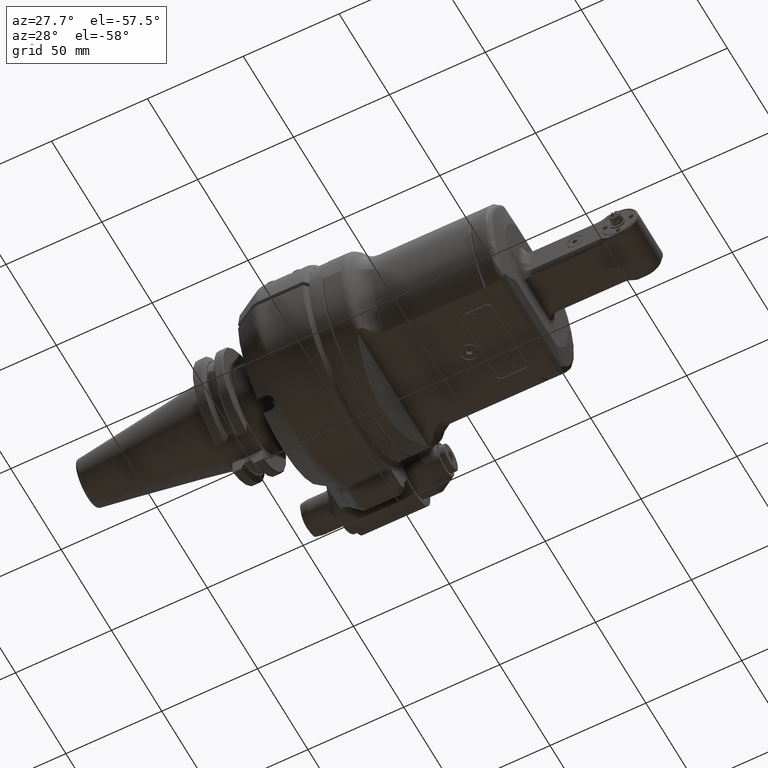
[diagram: clean part render]
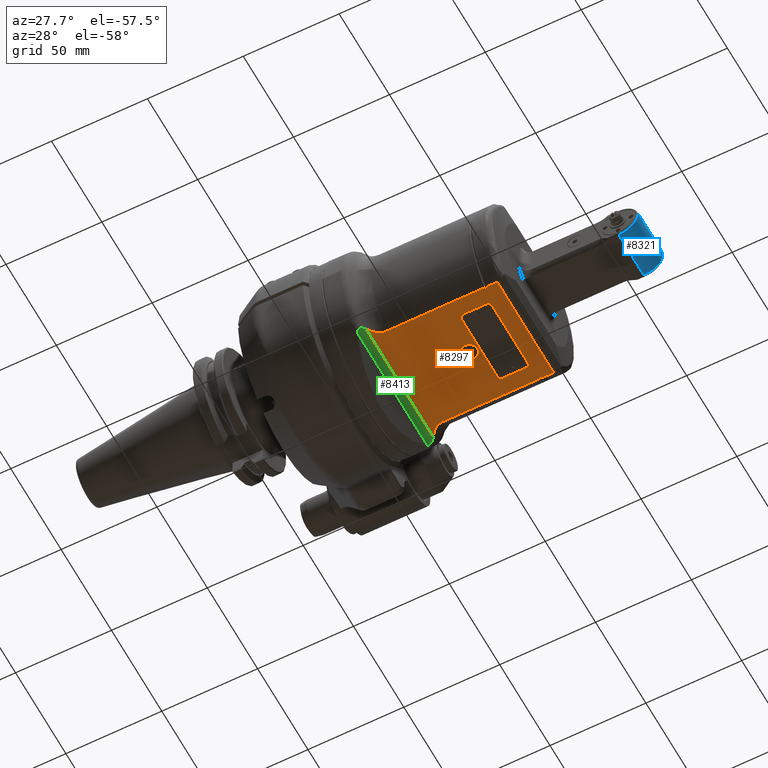
[diagram: same view with three faces highlighted in distinct colors, each labeled with its STEP entity id]
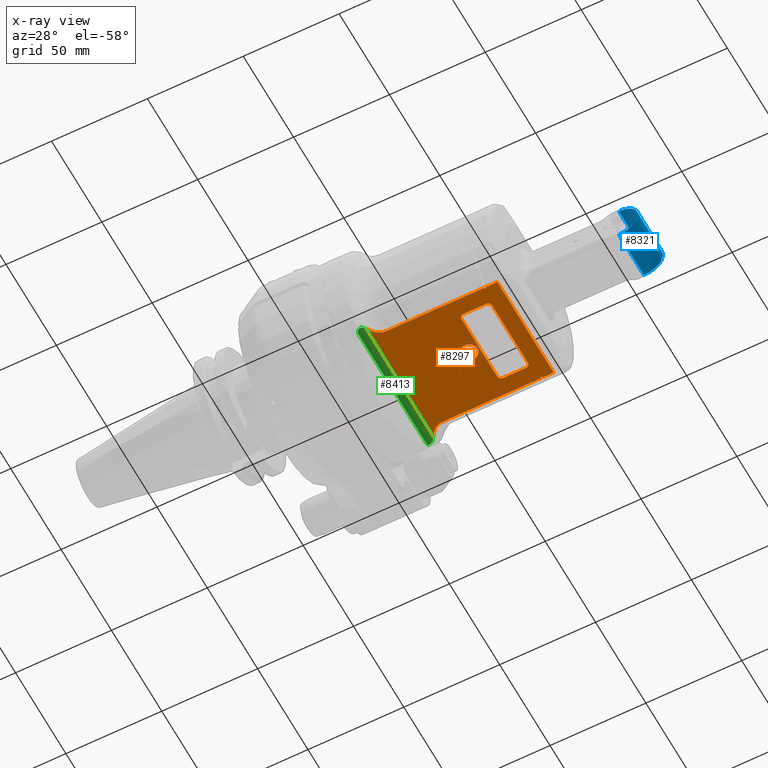
[diagram: x-ray of the same camera — body ghosted, the three highlighted faces saturated]
A machine part, auxiliary view with three faces highlighted in distinct colors.
The next image is the same camera in x-ray (body ghosted, the three faces saturated) — at least one of them is partly hidden behind the body in this view.
Their STEP definitions:

[orange] entity #8297 — the highlighted planar face has unit normal (0, 0, 1).
#187=FACE_BOUND('',#1111,.T.);
#188=FACE_BOUND('',#1112,.T.);
#252=(
BOUNDED_CURVE()
B_SPLINE_CURVE(2,(#12632,#12633,#12634),.UNSPECIFIED.,.F.,.F.)
B_SPLINE_CURVE_WITH_KNOTS((3,3),(0.23160618142738,0.358514003521057),
 .UNSPECIFIED.)
CURVE()
GEOMETRIC_REPRESENTATION_ITEM()
RATIONAL_B_SPLINE_CURVE((1.02900848033019,1.0367195540213,1.04417147576477))
REPRESENTATION_ITEM('')
);
#253=(
BOUNDED_CURVE()
B_SPLINE_CURVE(2,(#12721,#12722,#12723),.UNSPECIFIED.,.F.,.F.)
B_SPLINE_CURVE_WITH_KNOTS((3,3),(7.65699018714519,7.78389800923655),
 .UNSPECIFIED.)
CURVE()
GEOMETRIC_REPRESENTATION_ITEM()
RATIONAL_B_SPLINE_CURVE((1.04417147576474,1.0367195540214,1.02900848033044))
REPRESENTATION_ITEM('')
);
#362=PLANE('',#9048);
#612=FACE_OUTER_BOUND('',#1110,.T.);
#1110=EDGE_LOOP('',(#5534,#5535,#5536,#5537,#5538,#5539,#5540,#5541,#5542,
#5543,#5544,#5545,#5546,#5547));
#1111=EDGE_LOOP('',(#5548));
#1112=EDGE_LOOP('',(#5549,#5550,#5551,#5552,#5553,#5554,#5555,#5556));
#1668=B_SPLINE_CURVE_WITH_KNOTS('',3,(#12615,#12616,#12617,#12618,#12619,
#12620,#12621,#12622,#12623,#12624,#12625,#12626),.UNSPECIFIED.,.F.,.F.,
(4,2,2,2,2,4),(3.0712756261057,3.21936466197179,3.36745369783788,3.55263373942635,
3.73781378101483,3.80386728738877),.UNSPECIFIED.);
#1677=B_SPLINE_CURVE_WITH_KNOTS('',3,(#12726,#12727,#12728,#12729,#12730,
#12731,#12732,#12733,#12734,#12735,#12736,#12737),.UNSPECIFIED.,.F.,.F.,
(4,2,2,2,2,4),(2.33868396482474,2.40473747119658,2.58991751278505,2.77509755437353,
2.92318659023961,3.0712756261057),.UNSPECIFIED.);
#1819=LINE('',#12593,#2397);
#1824=LINE('',#12611,#2402);
#1827=LINE('',#12739,#2405);
#1828=LINE('',#12745,#2406);
#1829=LINE('',#12747,#2407);
#1830=LINE('',#12749,#2408);
#1831=LINE('',#12757,#2409);
#1832=LINE('',#12761,#2410);
#1833=LINE('',#12765,#2411);
#1834=LINE('',#12769,#2412);
#2397=VECTOR('',#9978,51.26935071414);
#2402=VECTOR('',#9999,51.26935071414);
#2405=VECTOR('',#10048,66.8416030065);
#2406=VECTOR('',#10053,5.79108067422501);
#2407=VECTOR('',#10054,55.93746508379);
#2408=VECTOR('',#10055,5.79108067422501);
#2409=VECTOR('',#10062,35.5);
#2410=VECTOR('',#10065,12.);
#2411=VECTOR('',#10068,35.5);
#2412=VECTOR('',#10071,12.);
#2979=CIRCLE('',#9049,125.457615759713);
#2980=CIRCLE('',#9050,125.457615683286);
#2981=CIRCLE('',#9051,125.457615844418);
#2982=CIRCLE('',#9052,125.457615724848);
#2983=CIRCLE('',#9053,4.25);
#2984=CIRCLE('',#9054,2.);
#2985=CIRCLE('',#9055,2.);
#2986=CIRCLE('',#9056,2.);
#2987=CIRCLE('',#9057,2.);
#3394=VERTEX_POINT('',#12590);
#3395=VERTEX_POINT('',#12592);
#3399=VERTEX_POINT('',#12608);
#3400=VERTEX_POINT('',#12610);
#3401=VERTEX_POINT('',#12614);
#3403=VERTEX_POINT('',#12631);
#3415=VERTEX_POINT('',#12713);
#3416=VERTEX_POINT('',#12720);
#3417=VERTEX_POINT('',#12740);
#3418=VERTEX_POINT('',#12742);
#3419=VERTEX_POINT('',#12744);
#3420=VERTEX_POINT('',#12746);
#3421=VERTEX_POINT('',#12748);
#3422=VERTEX_POINT('',#12750);
#3423=VERTEX_POINT('',#12753);
#3424=VERTEX_POINT('',#12755);
#3425=VERTEX_POINT('',#12756);
#3426=VERTEX_POINT('',#12758);
#3427=VERTEX_POINT('',#12760);
#3428=VERTEX_POINT('',#12762);
#3429=VERTEX_POINT('',#12764);
#3430=VERTEX_POINT('',#12766);
#3431=VERTEX_POINT('',#12768);
#4209=EDGE_CURVE('',#3394,#3395,#1819,.T.);
#4218=EDGE_CURVE('',#3399,#3400,#1824,.T.);
#4220=EDGE_CURVE('',#3400,#3401,#1668,.T.);
#4223=EDGE_CURVE('',#3403,#3401,#252,.T.);
#4243=EDGE_CURVE('',#3416,#3415,#253,.T.);
#4245=EDGE_CURVE('',#3416,#3394,#1677,.T.);
#4246=EDGE_CURVE('',#3403,#3415,#1827,.T.);
#4247=EDGE_CURVE('',#3399,#3417,#2979,.T.);
#4248=EDGE_CURVE('',#3417,#3418,#2980,.T.);
#4249=EDGE_CURVE('',#3419,#3418,#1828,.T.);
#4250=EDGE_CURVE('',#3420,#3419,#1829,.T.);
#4251=EDGE_CURVE('',#3421,#3420,#1830,.T.);
#4252=EDGE_CURVE('',#3421,#3422,#2981,.T.);
#4253=EDGE_CURVE('',#3422,#3395,#2982,.T.);
#4254=EDGE_CURVE('',#3423,#3423,#2983,.T.);
#4255=EDGE_CURVE('',#3424,#3425,#1831,.T.);
#4256=EDGE_CURVE('',#3425,#3426,#2984,.T.);
#4257=EDGE_CURVE('',#3426,#3427,#1832,.T.);
#4258=EDGE_CURVE('',#3427,#3428,#2985,.T.);
#4259=EDGE_CURVE('',#3428,#3429,#1833,.T.);
#4260=EDGE_CURVE('',#3429,#3430,#2986,.T.);
#4261=EDGE_CURVE('',#3430,#3431,#1834,.T.);
#4262=EDGE_CURVE('',#3431,#3424,#2987,.T.);
#5534=ORIENTED_EDGE('',*,*,#4209,.F.);
#5535=ORIENTED_EDGE('',*,*,#4245,.F.);
#5536=ORIENTED_EDGE('',*,*,#4243,.T.);
#5537=ORIENTED_EDGE('',*,*,#4246,.F.);
#5538=ORIENTED_EDGE('',*,*,#4223,.T.);
#5539=ORIENTED_EDGE('',*,*,#4220,.F.);
#5540=ORIENTED_EDGE('',*,*,#4218,.F.);
#5541=ORIENTED_EDGE('',*,*,#4247,.T.);
#5542=ORIENTED_EDGE('',*,*,#4248,.T.);
#5543=ORIENTED_EDGE('',*,*,#4249,.F.);
#5544=ORIENTED_EDGE('',*,*,#4250,.F.);
#5545=ORIENTED_EDGE('',*,*,#4251,.F.);
#5546=ORIENTED_EDGE('',*,*,#4252,.T.);
#5547=ORIENTED_EDGE('',*,*,#4253,.T.);
#5548=ORIENTED_EDGE('',*,*,#4254,.T.);
#5549=ORIENTED_EDGE('',*,*,#4255,.T.);
#5550=ORIENTED_EDGE('',*,*,#4256,.T.);
#5551=ORIENTED_EDGE('',*,*,#4257,.T.);
#5552=ORIENTED_EDGE('',*,*,#4258,.T.);
#5553=ORIENTED_EDGE('',*,*,#4259,.T.);
#5554=ORIENTED_EDGE('',*,*,#4260,.T.);
#5555=ORIENTED_EDGE('',*,*,#4261,.T.);
#5556=ORIENTED_EDGE('',*,*,#4262,.T.);
#8297=ADVANCED_FACE('',(#612,#187,#188),#362,.F.);
#9048=AXIS2_PLACEMENT_3D('',#12738,#10046,#10047);
#9049=AXIS2_PLACEMENT_3D('',#12741,#10049,#10050);
#9050=AXIS2_PLACEMENT_3D('',#12743,#10051,#10052);
#9051=AXIS2_PLACEMENT_3D('',#12751,#10056,#10057);
#9052=AXIS2_PLACEMENT_3D('',#12752,#10058,#10059);
#9053=AXIS2_PLACEMENT_3D('',#12754,#10060,#10061);
#9054=AXIS2_PLACEMENT_3D('',#12759,#10063,#10064);
#9055=AXIS2_PLACEMENT_3D('',#12763,#10066,#10067);
#9056=AXIS2_PLACEMENT_3D('',#12767,#10069,#10070);
#9057=AXIS2_PLACEMENT_3D('',#12770,#10072,#10073);
#9978=DIRECTION('',(1.,3.473462649786E-9,-3.035885710973E-9));
#9999=DIRECTION('',(-1.,3.473462719081E-9,3.035885849564E-9));
#10046=DIRECTION('center_axis',(0.,0.,1.));
#10047=DIRECTION('ref_axis',(1.,0.,0.));
#10048=DIRECTION('',(4.41420997931E-13,-1.,1.593473993735E-13));
#10049=DIRECTION('center_axis',(-0.000101432513108256,-6.7248743118549E-5,
-0.999999992594526));
#10050=DIRECTION('ref_axis',(0.839311775710025,0.543650373259527,-0.000121693307890459));
#10051=DIRECTION('center_axis',(0.000101431716550913,-6.72482230361314E-5,
-0.999999992594642));
#10052=DIRECTION('ref_axis',(-0.835326366002053,0.549754351916615,-0.000121698591357801));
#10053=DIRECTION('',(-0.999999999999999,-3.075111336812E-8,-2.687717509043E-8));
#10054=DIRECTION('',(0.,1.,0.));
#10055=DIRECTION('',(0.999999999999999,-3.075112502425E-8,2.687718367915E-8));
#10056=DIRECTION('center_axis',(0.000101433409963309,6.72493286931444E-5,
-0.999999992594396));
#10057=DIRECTION('ref_axis',(-0.839311775708652,-0.543650373261407,-0.000121694378979329));
#10058=DIRECTION('center_axis',(-0.000101432149410331,6.72485056586998E-5,
-0.999999992594579));
#10059=DIRECTION('ref_axis',(0.835326366002591,-0.549754351915683,-0.000121699108309696));
#10060=DIRECTION('center_axis',(0.,0.,1.));
#10061=DIRECTION('ref_axis',(-1.,0.,0.));
#10062=DIRECTION('',(0.,-1.,0.));
#10063=DIRECTION('center_axis',(0.,0.,1.));
#10064=DIRECTION('ref_axis',(-1.,0.,0.));
#10065=DIRECTION('',(1.,0.,0.));
#10066=DIRECTION('center_axis',(0.,0.,1.));
#10067=DIRECTION('ref_axis',(0.,-1.,0.));
#10068=DIRECTION('',(0.,1.,0.));
#10069=DIRECTION('center_axis',(0.,0.,1.));
#10070=DIRECTION('ref_axis',(1.,0.,0.));
#10071=DIRECTION('',(-1.,0.,0.));
#10072=DIRECTION('center_axis',(0.,0.,1.));
#10073=DIRECTION('ref_axis',(0.,1.,0.));
#12590=CARTESIAN_POINT('',(17.23064887381,-27.96873254189,-32.));
#12592=CARTESIAN_POINT('',(68.4999999587753,-27.9687323282238,-32.0000002221198));
#12593=CARTESIAN_POINT('',(17.23064887381,-27.96873254189,-32.));
#12608=CARTESIAN_POINT('',(68.4999999587749,27.9687323282248,-32.0000002221204));
#12610=CARTESIAN_POINT('',(17.23064887381,27.96873254189,-32.));
#12611=CARTESIAN_POINT('',(68.49999958795,27.96873236381,-32.00000015565));
#12614=CARTESIAN_POINT('',(10.8689323207828,31.8285952717483,-31.9999999948987));
#12615=CARTESIAN_POINT('Ctrl Pts',(17.23064887381,27.968732541894,-32.));
#12616=CARTESIAN_POINT('Ctrl Pts',(16.7370187542564,27.968732541894,-32.));
#12617=CARTESIAN_POINT('Ctrl Pts',(16.2014291398538,28.0351278054541,-32.));
#12618=CARTESIAN_POINT('Ctrl Pts',(15.1655978291162,28.3086723916246,-32.));
#12619=CARTESIAN_POINT('Ctrl Pts',(14.6650966137489,28.5148380476213,-32.));
#12620=CARTESIAN_POINT('Ctrl Pts',(13.6833023503027,29.0346187724486,-32.));
#12621=CARTESIAN_POINT('Ctrl Pts',(13.1290095618824,29.419596467791,-32.));
#12622=CARTESIAN_POINT('Ctrl Pts',(12.1164800137392,30.3041616581605,-32.));
#12623=CARTESIAN_POINT('Ctrl Pts',(11.6572714347099,30.8026361299901,-32.));
#12624=CARTESIAN_POINT('Ctrl Pts',(11.137398225598,31.4591772499858,-32.));
#12625=CARTESIAN_POINT('Ctrl Pts',(11.0017950550171,31.6403251966167,-32.));
#12626=CARTESIAN_POINT('Ctrl Pts',(10.8689323183678,31.8285952700441,-32.));
#12631=CARTESIAN_POINT('',(9.73152223544517,33.4208052854652,-32.0000001608933));
#12632=CARTESIAN_POINT('Ctrl Pts',(9.73152233070806,33.4208053543217,-32.));
#12633=CARTESIAN_POINT('Ctrl Pts',(10.3141048133347,32.6148007729745,-32.));
#12634=CARTESIAN_POINT('Ctrl Pts',(10.868932318368,31.8285952700442,-32.));
#12713=CARTESIAN_POINT('',(9.73152223547876,-33.4208052854155,-32.0000001608898));
#12720=CARTESIAN_POINT('',(10.8689323207931,-31.8285952717287,-31.9999999949037));
#12721=CARTESIAN_POINT('Ctrl Pts',(10.868932318366,-31.8285952700471,-32.));
#12722=CARTESIAN_POINT('Ctrl Pts',(10.3141048133429,-32.614800772963,-32.));
#12723=CARTESIAN_POINT('Ctrl Pts',(9.73152233072738,-33.4208053542949,-32.));
#12726=CARTESIAN_POINT('Ctrl Pts',(10.8689323183805,-31.8285952700261,-32.));
#12727=CARTESIAN_POINT('Ctrl Pts',(11.0017950550257,-31.6403251966052,-32.));
#12728=CARTESIAN_POINT('Ctrl Pts',(11.1373982256024,-31.4591772499803,-32.));
#12729=CARTESIAN_POINT('Ctrl Pts',(11.6572714347099,-30.8026361299901,-32.));
#12730=CARTESIAN_POINT('Ctrl Pts',(12.1164800137392,-30.3041616581605,-32.));
#12731=CARTESIAN_POINT('Ctrl Pts',(13.1290095618824,-29.419596467791,-32.));
#12732=CARTESIAN_POINT('Ctrl Pts',(13.6833023503027,-29.0346187724486,-32.));
#12733=CARTESIAN_POINT('Ctrl Pts',(14.6650966137489,-28.5148380476213,-32.));
#12734=CARTESIAN_POINT('Ctrl Pts',(15.1655978291162,-28.3086723916246,-32.));
#12735=CARTESIAN_POINT('Ctrl Pts',(16.2014291398538,-28.0351278054541,-32.));
#12736=CARTESIAN_POINT('Ctrl Pts',(16.7370187542564,-27.968732541894,-32.));
#12737=CARTESIAN_POINT('Ctrl Pts',(17.23064887381,-27.968732541894,-32.));
#12738=CARTESIAN_POINT('Origin',(18.93069204808,58.8000024,-32.));
#12739=CARTESIAN_POINT('',(9.73152198157,33.42080150323,-32.00000048268));
#12740=CARTESIAN_POINT('',(69.,27.202941575184,-31.9999995276666));
#12741=CARTESIAN_POINT('Origin',(-36.2980544659881,-41.0021377453836,-31.9847321763133));
#12742=CARTESIAN_POINT('',(69.5000000412247,27.9687323282238,-32.0000002221198));
#12743=CARTESIAN_POINT('Origin',(174.298054402027,-41.0021377035762,-31.9847322956708));
#12744=CARTESIAN_POINT('',(75.29108108628,27.96873254189,-32.));
#12745=CARTESIAN_POINT('',(75.29108108628,27.96873254189,-32.));
#12746=CARTESIAN_POINT('',(75.29108108628,-27.96873254189,-32.));
#12747=CARTESIAN_POINT('',(75.29108108628,-27.96873254189,-32.));
#12748=CARTESIAN_POINT('',(69.5000000412251,-27.9687323282249,-32.0000002221204));
#12749=CARTESIAN_POINT('',(69.50000041205,-27.96873236381,-32.00000015565));
#12750=CARTESIAN_POINT('',(69.0000000000001,-27.2029415751841,-31.9999995276666));
#12751=CARTESIAN_POINT('Origin',(174.29805453691,41.0021377916699,-31.9847320419267));
#12752=CARTESIAN_POINT('Origin',(-36.2980544368122,41.0021377263083,-31.9847322308102));
#12753=CARTESIAN_POINT('',(50.25,0.,-32.));
#12754=CARTESIAN_POINT('Origin',(46.,0.,-32.));
#12755=CARTESIAN_POINT('',(51.25,17.75,-32.));
#12756=CARTESIAN_POINT('',(51.25,-17.75,-32.));
#12757=CARTESIAN_POINT('',(51.25,17.75,-32.));
#12758=CARTESIAN_POINT('',(53.25,-19.75,-32.));
#12759=CARTESIAN_POINT('Origin',(53.25,-17.75,-32.));
#12760=CARTESIAN_POINT('',(65.25,-19.75,-32.));
#12761=CARTESIAN_POINT('',(53.25,-19.75,-32.));
#12762=CARTESIAN_POINT('',(67.25,-17.75,-32.));
#12763=CARTESIAN_POINT('Origin',(65.25,-17.75,-32.));
#12764=CARTESIAN_POINT('',(67.25,17.75,-32.));
#12765=CARTESIAN_POINT('',(67.25,-17.75,-32.));
#12766=CARTESIAN_POINT('',(65.25,19.75,-32.));
#12767=CARTESIAN_POINT('Origin',(65.25,17.75,-32.));
#12768=CARTESIAN_POINT('',(53.25,19.75,-32.));
#12769=CARTESIAN_POINT('',(65.25,19.75,-32.));
#12770=CARTESIAN_POINT('Origin',(53.25,17.75,-32.));

[blue] entity #8321 — the highlighted cylindrical surface (edge-blend (fillet) strip) has radius 10 mm, axis along (0, 1, 0).
#636=FACE_OUTER_BOUND('',#1137,.T.);
#1137=EDGE_LOOP('',(#5689,#5690,#5691,#5692));
#1854=LINE('',#13082,#2432);
#1859=LINE('',#13115,#2437);
#2432=VECTOR('',#10179,25.);
#2437=VECTOR('',#10188,25.);
#3008=CIRCLE('',#9102,10.);
#3009=CIRCLE('',#9103,10.);
#3477=VERTEX_POINT('',#13080);
#3478=VERTEX_POINT('',#13081);
#3485=VERTEX_POINT('',#13112);
#3486=VERTEX_POINT('',#13114);
#4329=EDGE_CURVE('',#3477,#3478,#1854,.T.);
#4338=EDGE_CURVE('',#3485,#3478,#3008,.T.);
#4339=EDGE_CURVE('',#3485,#3486,#1859,.T.);
#4340=EDGE_CURVE('',#3477,#3486,#3009,.T.);
#5689=ORIENTED_EDGE('',*,*,#4329,.T.);
#5690=ORIENTED_EDGE('',*,*,#4338,.F.);
#5691=ORIENTED_EDGE('',*,*,#4339,.T.);
#5692=ORIENTED_EDGE('',*,*,#4340,.F.);
#7882=CYLINDRICAL_SURFACE('',#9101,10.);
#8321=ADVANCED_FACE('',(#636),#7882,.T.);
#9101=AXIS2_PLACEMENT_3D('',#13111,#10184,#10185);
#9102=AXIS2_PLACEMENT_3D('',#13113,#10186,#10187);
#9103=AXIS2_PLACEMENT_3D('',#13116,#10189,#10190);
#10179=DIRECTION('',(0.,1.,0.));
#10184=DIRECTION('center_axis',(0.,1.,0.));
#10185=DIRECTION('ref_axis',(0.,0.,-1.));
#10186=DIRECTION('center_axis',(0.,1.,0.));
#10187=DIRECTION('ref_axis',(0.,0.,1.));
#10188=DIRECTION('',(0.,-1.,0.));
#10189=DIRECTION('center_axis',(0.,-1.,0.));
#10190=DIRECTION('ref_axis',(0.,0.,-1.));
#13080=CARTESIAN_POINT('',(130.4885,-12.5,-10.));
#13081=CARTESIAN_POINT('',(130.4885,12.5,-10.));
#13082=CARTESIAN_POINT('',(130.4885,-12.5,-10.));
#13111=CARTESIAN_POINT('Origin',(130.4885,0.,0.));
#13112=CARTESIAN_POINT('',(130.4885,12.5,10.));
#13113=CARTESIAN_POINT('Origin',(130.4885,12.5,0.));
#13114=CARTESIAN_POINT('',(130.4885,-12.5,10.));
#13115=CARTESIAN_POINT('',(130.4885,12.5,10.));
#13116=CARTESIAN_POINT('Origin',(130.4885,-12.5,0.));

[green] entity #8413 — the highlighted cylindrical surface (edge-blend (fillet) strip) has radius 4 mm, axis along (0, -1, 0).
#728=FACE_OUTER_BOUND('',#1240,.T.);
#1240=EDGE_LOOP('',(#6129,#6130,#6131,#6132,#6133,#6134));
#1669=B_SPLINE_CURVE_WITH_KNOTS('',3,(#12635,#12636,#12637,#12638,#12639,
#12640),.UNSPECIFIED.,.F.,.F.,(4,2,4),(2.32486066041253,2.37100122485462,
2.51385352982612),.UNSPECIFIED.);
#1671=B_SPLINE_CURVE_WITH_KNOTS('',3,(#12652,#12653,#12654,#12655,#12656,
#12657,#12658,#12659,#12660,#12661),.UNSPECIFIED.,.F.,.F.,(4,3,3,4),(7.15538185407971,
7.24747598917877,7.62320964214582,7.89672009865851),.UNSPECIFIED.);
#1675=B_SPLINE_CURVE_WITH_KNOTS('',3,(#12702,#12703,#12704,#12705,#12706,
#12707,#12708,#12709,#12710,#12711),.UNSPECIFIED.,.F.,.F.,(4,3,3,4),(1.25466641578021,
1.33366635338376,1.59877209453328,1.92070516621256),.UNSPECIFIED.);
#1676=B_SPLINE_CURVE_WITH_KNOTS('',3,(#12714,#12715,#12716,#12717,#12718,
#12719),.UNSPECIFIED.,.F.,.F.,(4,2,4),(1.65967333445505,1.80252563943235,
1.84866620385777),.UNSPECIFIED.);
#1827=LINE('',#12739,#2405);
#1960=LINE('',#13771,#2538);
#2405=VECTOR('',#10048,66.8416030065);
#2538=VECTOR('',#10611,69.01788791009);
#3402=VERTEX_POINT('',#12629);
#3403=VERTEX_POINT('',#12631);
#3406=VERTEX_POINT('',#12651);
#3413=VERTEX_POINT('',#12693);
#3414=VERTEX_POINT('',#12695);
#3415=VERTEX_POINT('',#12713);
#4224=EDGE_CURVE('',#3402,#3403,#1669,.T.);
#4227=EDGE_CURVE('',#3406,#3402,#1671,.T.);
#4241=EDGE_CURVE('',#3413,#3414,#1675,.T.);
#4242=EDGE_CURVE('',#3415,#3413,#1676,.T.);
#4246=EDGE_CURVE('',#3403,#3415,#1827,.T.);
#4544=EDGE_CURVE('',#3414,#3406,#1960,.T.);
#6129=ORIENTED_EDGE('',*,*,#4246,.T.);
#6130=ORIENTED_EDGE('',*,*,#4242,.T.);
#6131=ORIENTED_EDGE('',*,*,#4241,.T.);
#6132=ORIENTED_EDGE('',*,*,#4544,.T.);
#6133=ORIENTED_EDGE('',*,*,#4227,.T.);
#6134=ORIENTED_EDGE('',*,*,#4224,.T.);
#7904=CYLINDRICAL_SURFACE('',#9263,4.);
#8413=ADVANCED_FACE('',(#728),#7904,.F.);
#9263=AXIS2_PLACEMENT_3D('',#13770,#10609,#10610);
#10048=DIRECTION('',(4.41420997931E-13,-1.,1.593473993735E-13));
#10609=DIRECTION('center_axis',(0.,-1.,0.));
#10610=DIRECTION('ref_axis',(-1.,0.,0.));
#10611=DIRECTION('',(0.,1.,1.729568713595E-14));
#12629=CARTESIAN_POINT('',(8.464251895864,34.96449019495,-32.20605403651));
#12631=CARTESIAN_POINT('',(9.73152223544517,33.4208052854652,-32.0000001608933));
#12635=CARTESIAN_POINT('Ctrl Pts',(8.46425189586193,34.9644901949492,-32.2060540365063));
#12636=CARTESIAN_POINT('Ctrl Pts',(8.57396465863541,34.8491884144183,-32.1694073030823));
#12637=CARTESIAN_POINT('Ctrl Pts',(8.68292136926229,34.7296942117351,-32.1383054301838));
#12638=CARTESIAN_POINT('Ctrl Pts',(9.12351937830594,34.2280182034972,-32.0316577663278));
#12639=CARTESIAN_POINT('Ctrl Pts',(9.44304567510005,33.8199136663405,-31.99999999064));
#12640=CARTESIAN_POINT('Ctrl Pts',(9.73152233070812,33.4208053543216,-32.));
#12651=CARTESIAN_POINT('',(5.97275171778,34.50894395504,-34.6319194267));
#12652=CARTESIAN_POINT('Ctrl Pts',(5.97275171777833,34.5089439550409,-34.6319194267002));
#12653=CARTESIAN_POINT('Ctrl Pts',(6.02264478546485,34.6314391293934,-34.4948393498438));
#12654=CARTESIAN_POINT('Ctrl Pts',(6.08126519882089,34.7495415719132,-34.3569863588484));
#12655=CARTESIAN_POINT('Ctrl Pts',(6.15006935829351,34.8610655454025,-34.2186534486459));
#12656=CARTESIAN_POINT('Ctrl Pts',(6.43078254540545,35.3160707409823,-33.6542708240626));
#12657=CARTESIAN_POINT('Ctrl Pts',(6.83692729722199,35.6087276804224,-33.1646983477429));
#12658=CARTESIAN_POINT('Ctrl Pts',(7.35697062694044,35.5696404753584,-32.7810708578012));
#12659=CARTESIAN_POINT('Ctrl Pts',(7.73552944751577,35.5411874496141,-32.5018141846865));
#12660=CARTESIAN_POINT('Ctrl Pts',(8.13789456086203,35.3074729151316,-32.3150653306743));
#12661=CARTESIAN_POINT('Ctrl Pts',(8.46425189586207,34.9644901949494,-32.2060540365062));
#12693=CARTESIAN_POINT('',(8.464251895992,-34.96449019484,-32.20605403645));
#12695=CARTESIAN_POINT('',(5.972751717779,-34.50894395504,-34.6319194267));
#12702=CARTESIAN_POINT('Ctrl Pts',(8.46425189598104,-34.9644901948243,-32.2060540364665));
#12703=CARTESIAN_POINT('Ctrl Pts',(8.36114034636116,-35.0728544813969,-32.240495804005));
#12704=CARTESIAN_POINT('Ctrl Pts',(8.25176515095304,-35.1714412030351,-32.2815513553307));
#12705=CARTESIAN_POINT('Ctrl Pts',(8.13385684784018,-35.2578596544262,-32.3329214053202));
#12706=CARTESIAN_POINT('Ctrl Pts',(7.73818352159932,-35.5478602329078,-32.5053075563537));
#12707=CARTESIAN_POINT('Ctrl Pts',(7.27612041202744,-35.6352550242119,-32.8020361893503));
#12708=CARTESIAN_POINT('Ctrl Pts',(6.91666232000959,-35.5157844681852,-33.1580704000936));
#12709=CARTESIAN_POINT('Ctrl Pts',(6.48015178952654,-35.3707045355134,-33.5904231156195));
#12710=CARTESIAN_POINT('Ctrl Pts',(6.17748201993119,-35.011588414889,-34.0694275444557));
#12711=CARTESIAN_POINT('Ctrl Pts',(5.97275171777826,-34.5089439550407,-34.6319194267004));
#12713=CARTESIAN_POINT('',(9.73152223547876,-33.4208052854155,-32.0000001608898));
#12714=CARTESIAN_POINT('Ctrl Pts',(9.73152233074326,-33.420805354273,-32.));
#12715=CARTESIAN_POINT('Ctrl Pts',(9.44304567512597,-33.8199136663074,-31.9999999906375));
#12716=CARTESIAN_POINT('Ctrl Pts',(9.12351937831946,-34.2280182034818,-32.0316577663245));
#12717=CARTESIAN_POINT('Ctrl Pts',(8.68292136930117,-34.7296942116908,-32.1383054301744));
#12718=CARTESIAN_POINT('Ctrl Pts',(8.57396465871417,-34.8491884143319,-32.1694073030598));
#12719=CARTESIAN_POINT('Ctrl Pts',(8.46425189598089,-34.9644901948242,-32.2060540364665));
#12739=CARTESIAN_POINT('',(9.73152198157,33.42080150323,-32.00000048268));
#13770=CARTESIAN_POINT('Origin',(9.731522200923,0.,-36.));
#13771=CARTESIAN_POINT('',(5.972751717779,-34.50894395504,-34.6319194267));